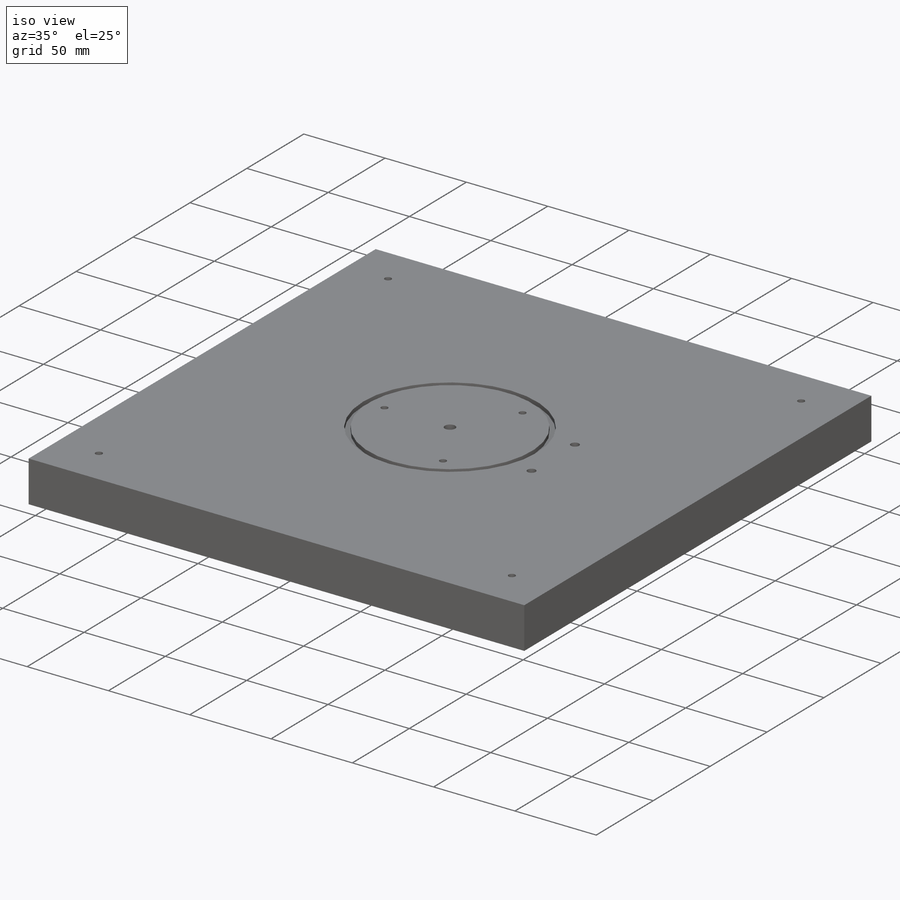
[diagram: iso view]
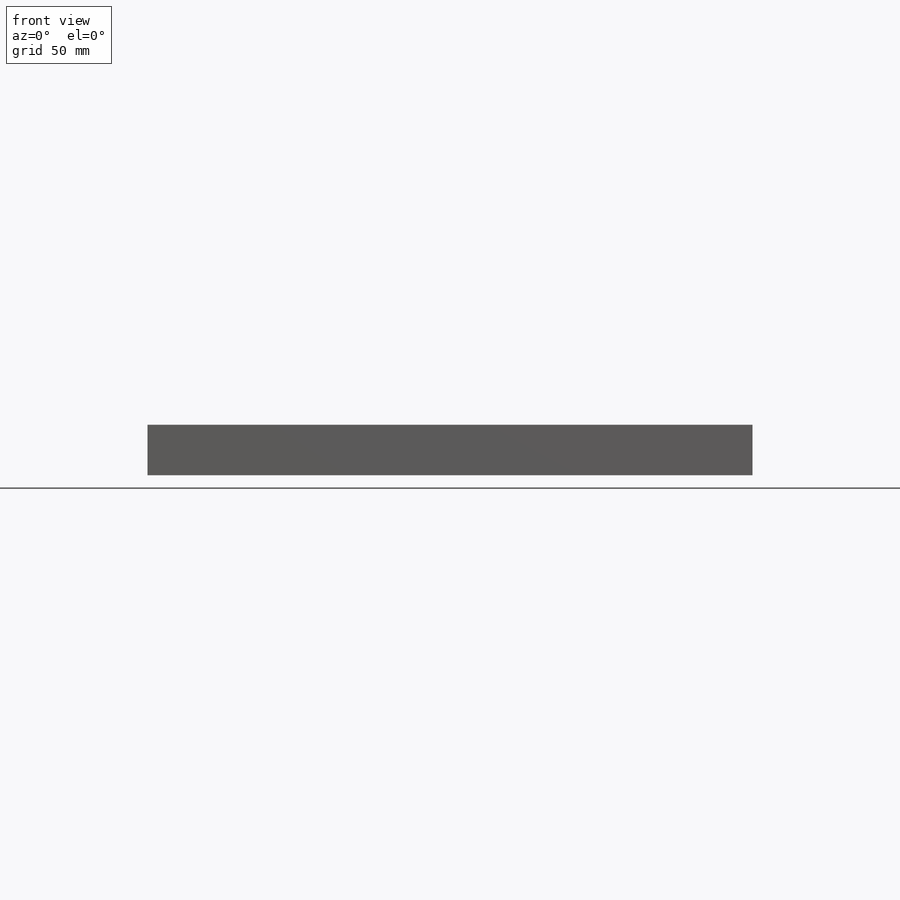
[diagram: front view]
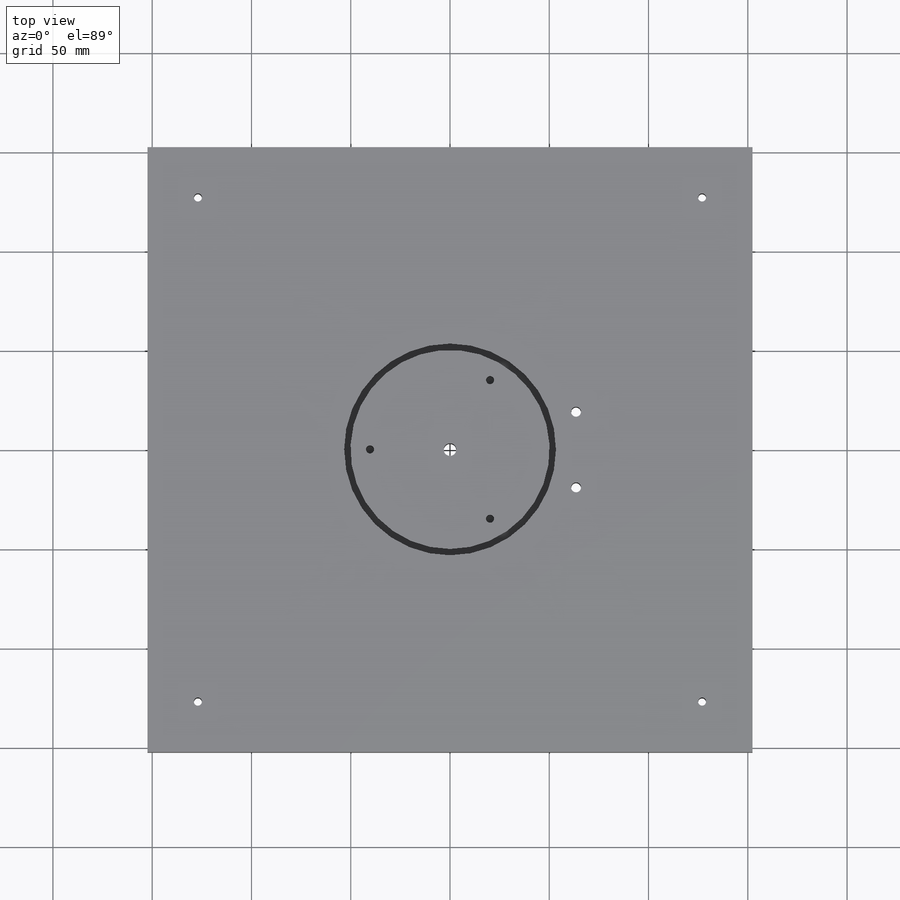
[diagram: top view]
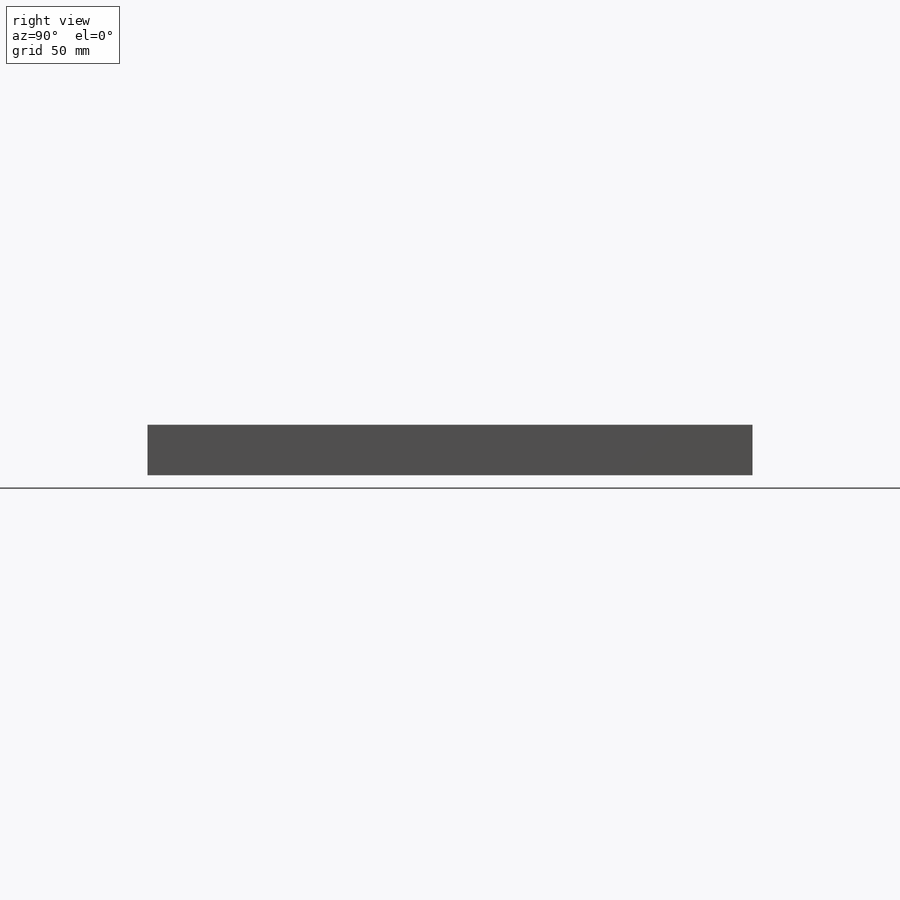
[diagram: right view]
SOLIDWORKS PART (.sldprt)
format: sldprt  version: not decoded by parser v0  size: 253,952 bytes
history: native  units: mm
features: sketch x7, cut_extrude x4, thread x3, material x1, extrude x1, hole x1 (+11 scaffold rows collapsed)
feature tree (28):
  scaffold x11  (default folders/planes/origin — collapsed)
  material  "Material <not specified>"
  sketch  "Sketch1"  dims[D1=200.0mm D2=200.0mm]
  extrude  "Boss-Extrude1"  Depth=6.35mm
  sketch  "Sketch2"  dims[D1=6.35mm]
  cut_extrude  "Cut-Extrude1"  [1 undecoded]
  sketch  "Sketch3"  dims[c1.D1=4.9784mm c1.D2=4.9784mm c1.D3=4.9784mm c1.D4=4.9784mm c1.D5=4.9784mm c1.D6=4.9784mm c2.D1=4.7625mm c2.D2=4.7625mm c2.D3=15.24mm c2.D4=15.24mm c2.D7=~9.840947mm]
  cut_extrude  "Cut-Extrude2"  [1 undecoded]
  sketch  "Sketch4"  dims[D1=3.175mm]
  cut_extrude  "Cut-Extrude3"  Depth=2.54mm
  hole  "#10-32 Tapped Hole1"  Diameter=4.0386mm Depth=13.716mm
  sketch  "Sketch8"  dims[c1.D2=6.35mm c1.D3=6.35mm c1.D1=40.3225mm c2.D2=~44.01989mm c2.D3=40.3225mm c2.D4=~74.81256mm c2.D5=~69.840619mm c2.D6=~71.18409mm]
  sketch  "Sketch7"  dims[hole-wizard template sketch: 47 standard entries collapsed; hole parameters kept: c15.Tap Drill Depth=13.716mm c15.D3=~14.816244mm c15.Drill Angle=118.0deg]
  thread  "Hole Thread1"  Diameter=6.35mm  [1 undecoded]
  thread  "Hole Thread2"  Diameter=6.35mm  [1 undecoded]
  thread  "Hole Thread3"  Diameter=6.35mm  [1 undecoded]
  sketch  "Sketch9"  dims[c1.D1=4.04mm c1.D3=4.04mm c1.D5=4.04mm c1.D6=4.04mm c1.D8=4.064mm c1.D2=25.4mm c2.D3=25.4mm c2.D4=25.4mm c2.D7=25.4mm]
  cut_extrude  "Cut-Extrude4"  [1 undecoded]
decode coverage: 13 of 16 modeling features carry decoded parameters
note: ~ marks probable driven/reference dimensions
note: 6 parameter values undecoded
summary: no parameter record found for 3 features
note: suppression state not decoded; provenance and decode notes live in map.json
